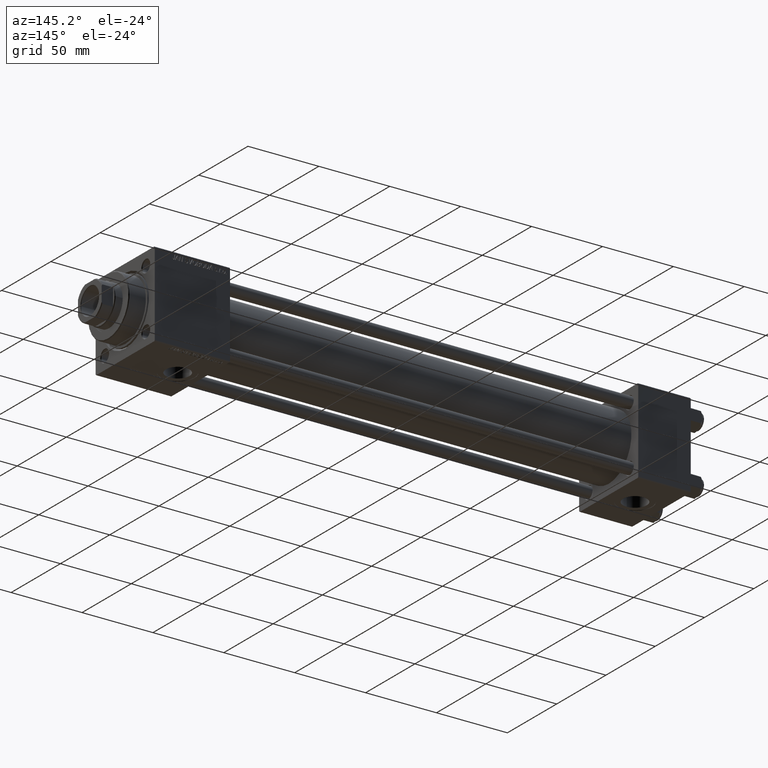
[diagram: clean part render]
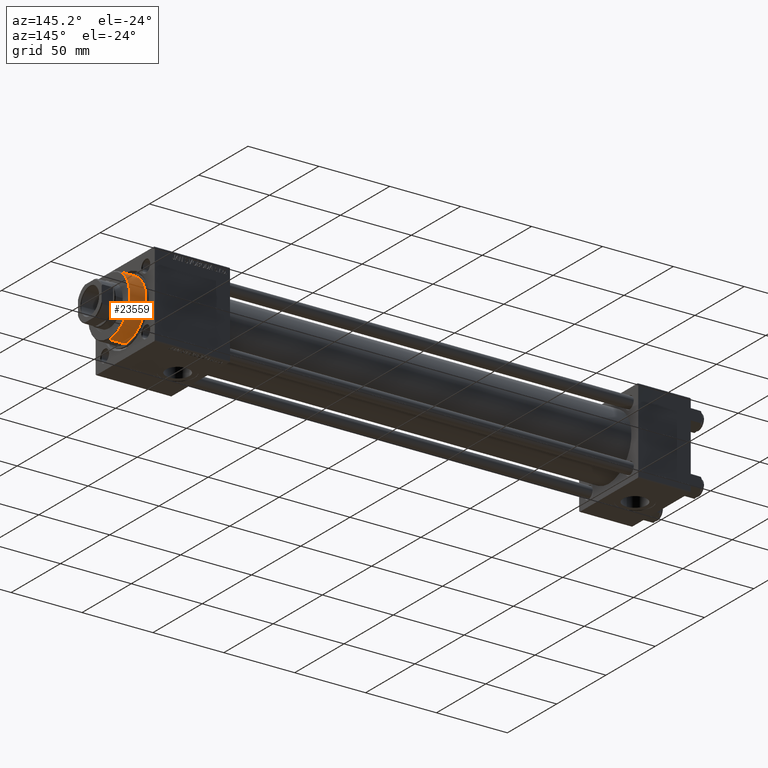
[diagram: same view with one face highlighted and labeled with its STEP entity id]
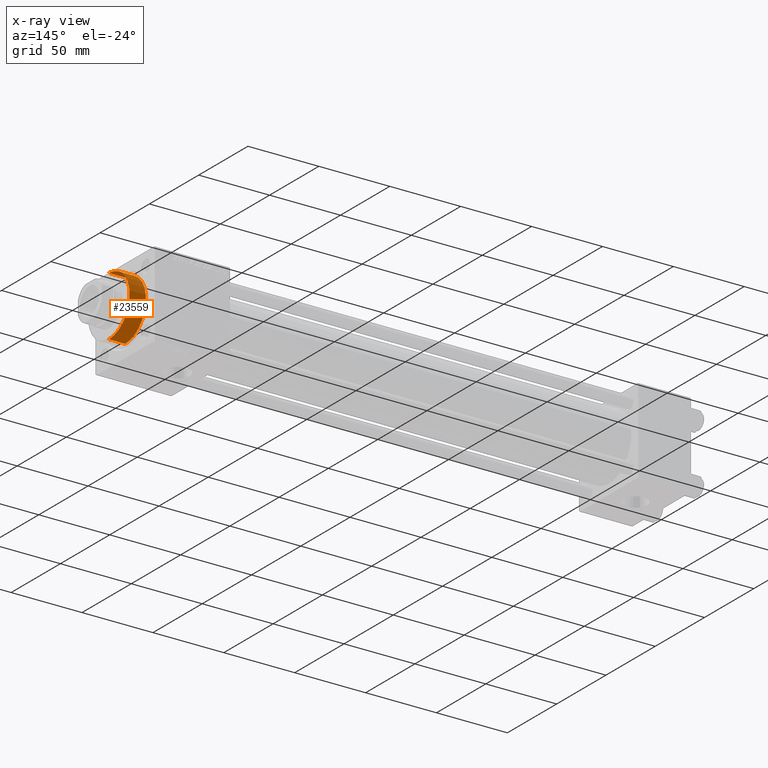
[diagram: x-ray of the same camera — body ghosted, the highlighted face saturated]
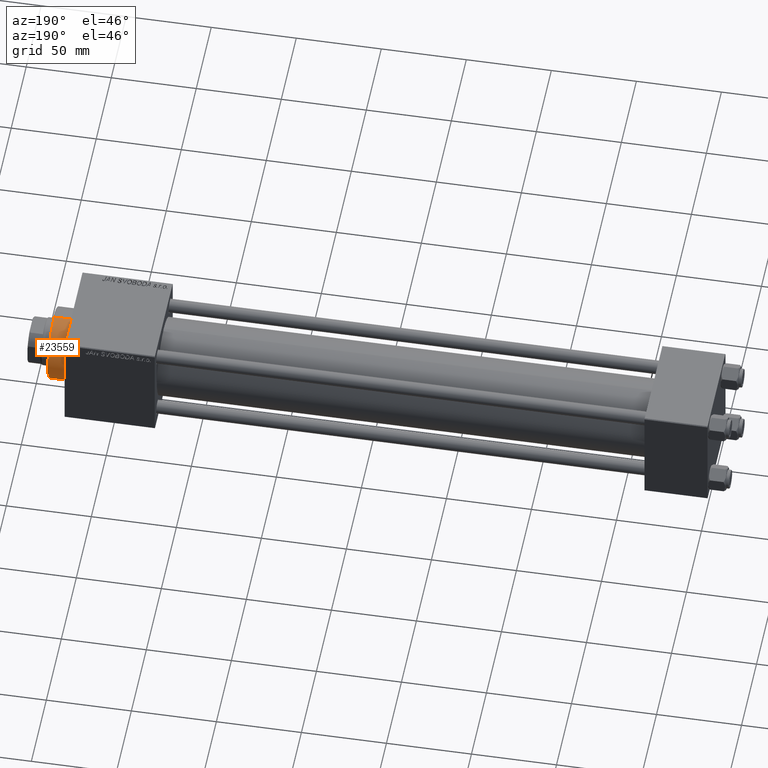
[diagram: same view with one face highlighted and labeled with its STEP entity id]
A machine part, auxiliary view. The second image highlights one B-rep face of the part: STEP entity #23559.
The next image is the same camera in x-ray: the body ghosted, the highlighted face saturated — about 0% of this face is hidden behind the body in this view.
A second angle (auxiliary view) of the same face is appended — the face is thin or edge-on in the first view.
In plain terms, the highlighted cylindrical surface (edge-blend (fillet) strip) has radius 21 mm, axis along (-1, -0, -0).
Its self-contained STEP definition (entity closure, byte-faithful):
#299 = CARTESIAN_POINT ( 'NONE',  ( -21.00000000000000000, 0.000000000000000000, 28.69999999999999929 ) ) ;
#1548 = CIRCLE ( 'NONE', #33996, 21.00000000000000000 ) ;
#4565 = EDGE_CURVE ( 'NONE', #14385, #19769, #1548, .T. ) ;
#5973 = DIRECTION ( 'NONE',  ( -0.000000000000000000, -0.000000000000000000, -1.000000000000000000 ) ) ;
#7713 = CIRCLE ( 'NONE', #22318, 21.00000000000000000 ) ;
#8154 = EDGE_CURVE ( 'NONE', #13121, #14385, #35470, .T. ) ;
#9744 = CARTESIAN_POINT ( 'NONE',  ( -21.00000000000000000, 0.000000000000000000, 40.70000000000000284 ) ) ;
#10380 = DIRECTION ( 'NONE',  ( 1.000000000000000000, 0.000000000000000000, 0.000000000000000000 ) ) ;
#12323 = DIRECTION ( 'NONE',  ( 0.000000000000000000, 0.000000000000000000, 1.000000000000000000 ) ) ;
#13121 = VERTEX_POINT ( 'NONE', #23285 ) ;
#13472 = EDGE_LOOP ( 'NONE', ( #39046, #18670, #37813, #25241 ) ) ;
#13750 = EDGE_CURVE ( 'NONE', #34624, #19769, #48357, .T. ) ;
#14385 = VERTEX_POINT ( 'NONE', #29353 ) ;
#14951 = VECTOR ( 'NONE', #28532, 1000.000000000000000 ) ;
#15645 = CARTESIAN_POINT ( 'NONE',  ( 21.00000000000000000, 2.571758278209441661E-15, 40.70000000000000284 ) ) ;
#16376 = CARTESIAN_POINT ( 'NONE',  ( 0.000000000000000000, 0.000000000000000000, 28.69999999999999929 ) ) ;
#18670 = ORIENTED_EDGE ( 'NONE', *, *, #8154, .T. ) ;
#19769 = VERTEX_POINT ( 'NONE', #299 ) ;
#20547 = VECTOR ( 'NONE', #31889, 1000.000000000000000 ) ;
#22318 = AXIS2_PLACEMENT_3D ( 'NONE', #48996, #30182, #10380 ) ;
#23285 = CARTESIAN_POINT ( 'NONE',  ( 21.00000000000000000, 2.571758278209441661E-15, 40.19999999999998863 ) ) ;
#23559 = ADVANCED_FACE ( 'NONE', ( #48140 ), #40286, .T. ) ;
#25241 = ORIENTED_EDGE ( 'NONE', *, *, #13750, .F. ) ;
#28152 = AXIS2_PLACEMENT_3D ( 'NONE', #40542, #5973, #32641 ) ;
#28532 = DIRECTION ( 'NONE',  ( -0.000000000000000000, -0.000000000000000000, -1.000000000000000000 ) ) ;
#28891 = CARTESIAN_POINT ( 'NONE',  ( -21.00000000000000000, 0.000000000000000000, 40.19999999999998863 ) ) ;
#29353 = CARTESIAN_POINT ( 'NONE',  ( 21.00000000000000000, 2.571758278209441661E-15, 28.69999999999999929 ) ) ;
#30182 = DIRECTION ( 'NONE',  ( 0.000000000000000000, 0.000000000000000000, -1.000000000000000000 ) ) ;
#31889 = DIRECTION ( 'NONE',  ( -0.000000000000000000, -0.000000000000000000, -1.000000000000000000 ) ) ;
#32641 = DIRECTION ( 'NONE',  ( -1.000000000000000000, 0.000000000000000000, 0.000000000000000000 ) ) ;
#33996 = AXIS2_PLACEMENT_3D ( 'NONE', #16376, #12323, #35959 ) ;
#34624 = VERTEX_POINT ( 'NONE', #28891 ) ;
#35470 = LINE ( 'NONE', #15645, #20547 ) ;
#35959 = DIRECTION ( 'NONE',  ( 1.000000000000000000, 0.000000000000000000, 0.000000000000000000 ) ) ;
#37813 = ORIENTED_EDGE ( 'NONE', *, *, #4565, .T. ) ;
#39046 = ORIENTED_EDGE ( 'NONE', *, *, #49187, .T. ) ;
#40286 = CYLINDRICAL_SURFACE ( 'NONE', #28152, 21.00000000000000000 ) ;
#40542 = CARTESIAN_POINT ( 'NONE',  ( 0.000000000000000000, 0.000000000000000000, 40.70000000000000284 ) ) ;
#48140 = FACE_OUTER_BOUND ( 'NONE', #13472, .T. ) ;
#48357 = LINE ( 'NONE', #9744, #14951 ) ;
#48996 = CARTESIAN_POINT ( 'NONE',  ( 0.000000000000000000, 0.000000000000000000, 40.19999999999998863 ) ) ;
#49187 = EDGE_CURVE ( 'NONE', #34624, #13121, #7713, .T. ) ;